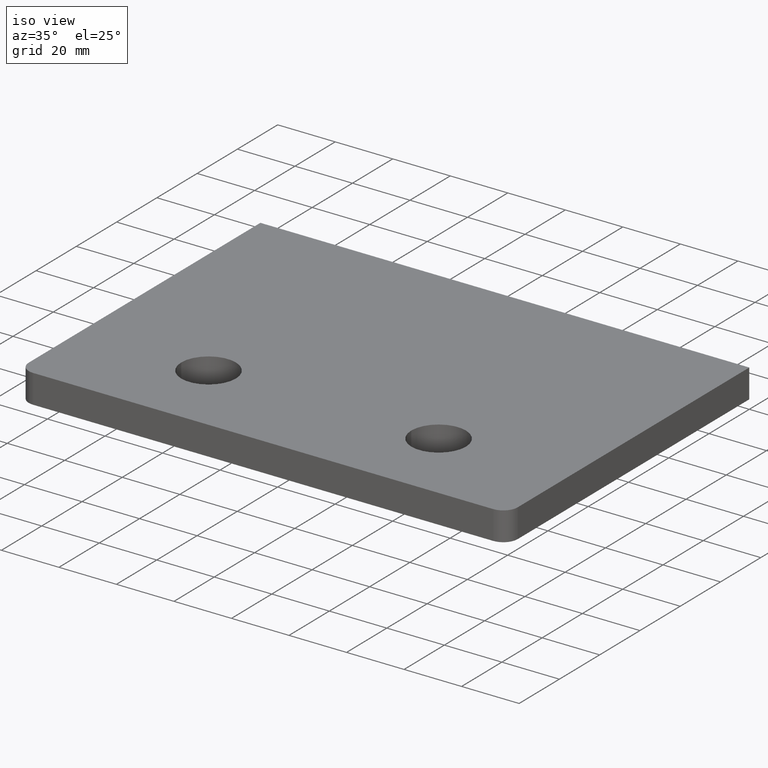
[diagram: clean part render]
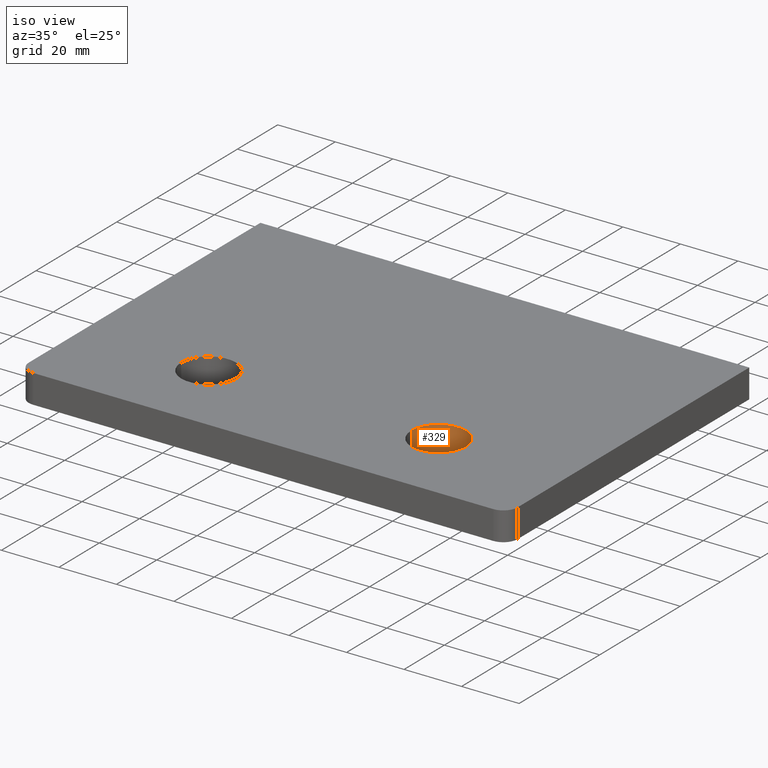
[diagram: same view with one face highlighted and labeled with its STEP entity id]
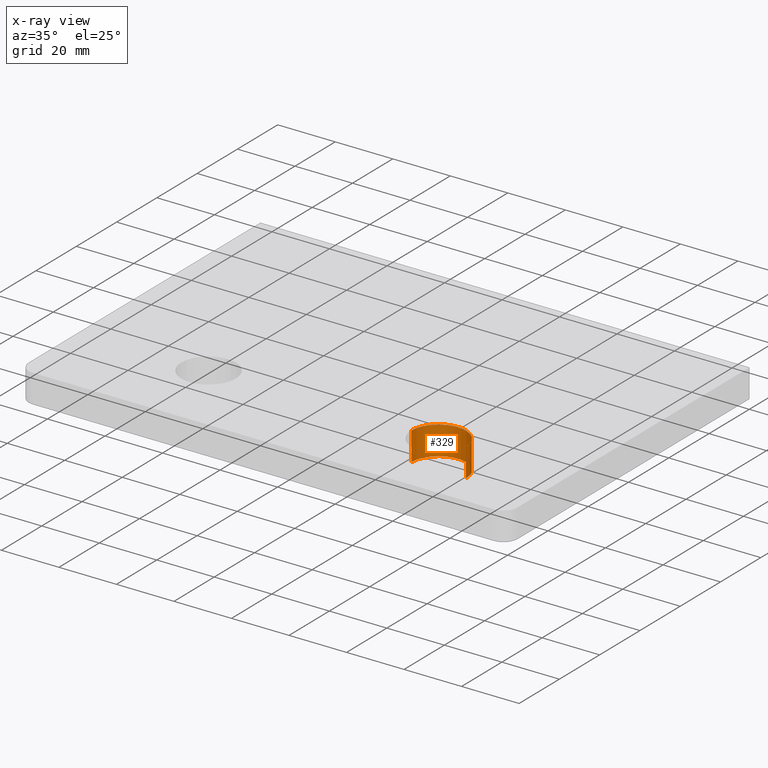
[diagram: x-ray of the same camera — body ghosted, the highlighted face saturated]
A machine part, iso view. The second image highlights one B-rep face of the part: STEP entity #329.
The next image is the same camera in x-ray: the body ghosted, the highlighted face saturated — about 0% of this face is hidden behind the body in this view.
In plain terms, the highlighted cylindrical surface (edge-blend (fillet) strip) has radius 9.5 mm, axis along (-0, -0, 1).
Its self-contained STEP definition (entity closure, byte-faithful):
#1 = VERTEX_POINT ( 'NONE', #235 ) ;
#23 = DIRECTION ( 'NONE',  ( -0.000000000000000000, -0.000000000000000000, 1.000000000000000000 ) ) ;
#46 = LINE ( 'NONE', #336, #432 ) ;
#51 = EDGE_CURVE ( 'NONE', #262, #64, #69, .T. ) ;
#52 = ORIENTED_EDGE ( 'NONE', *, *, #178, .T. ) ;
#64 = VERTEX_POINT ( 'NONE', #280 ) ;
#69 = CIRCLE ( 'NONE', #144, 9.499999999999994671 ) ;
#72 = CARTESIAN_POINT ( 'NONE',  ( -35.50000000000001421, 29.99999999999999289, 0.000000000000000000 ) ) ;
#95 = VERTEX_POINT ( 'NONE', #101 ) ;
#98 = AXIS2_PLACEMENT_3D ( 'NONE', #434, #269, #412 ) ;
#101 = CARTESIAN_POINT ( 'NONE',  ( -54.50000000000000711, 29.99999999999999289, 3.061616997868380183E-16 ) ) ;
#107 = EDGE_LOOP ( 'NONE', ( #195, #153, #52, #415 ) ) ;
#141 = DIRECTION ( 'NONE',  ( -0.000000000000000000, -0.000000000000000000, 1.000000000000000000 ) ) ;
#144 = AXIS2_PLACEMENT_3D ( 'NONE', #288, #394, #245 ) ;
#153 = ORIENTED_EDGE ( 'NONE', *, *, #51, .F. ) ;
#159 = CYLINDRICAL_SURFACE ( 'NONE', #98, 9.499999999999994671 ) ;
#164 = CARTESIAN_POINT ( 'NONE',  ( -45.00000000000001421, 29.99999999999999289, 3.061616997868380183E-16 ) ) ;
#178 = EDGE_CURVE ( 'NONE', #262, #1, #392, .T. ) ;
#195 = ORIENTED_EDGE ( 'NONE', *, *, #314, .F. ) ;
#202 = DIRECTION ( 'NONE',  ( 1.000000000000000000, 0.000000000000000000, 0.000000000000000000 ) ) ;
#228 = CARTESIAN_POINT ( 'NONE',  ( -35.50000000000001421, 29.99999999999999289, -10.00000000000000000 ) ) ;
#235 = CARTESIAN_POINT ( 'NONE',  ( -35.50000000000001421, 29.99999999999999289, 3.061616997868380183E-16 ) ) ;
#245 = DIRECTION ( 'NONE',  ( 1.000000000000000000, 0.000000000000000000, 0.000000000000000000 ) ) ;
#252 = VECTOR ( 'NONE', #141, 1000.000000000000000 ) ;
#253 = AXIS2_PLACEMENT_3D ( 'NONE', #164, #384, #202 ) ;
#262 = VERTEX_POINT ( 'NONE', #228 ) ;
#269 = DIRECTION ( 'NONE',  ( -0.000000000000000000, -0.000000000000000000, 1.000000000000000000 ) ) ;
#280 = CARTESIAN_POINT ( 'NONE',  ( -54.50000000000000711, 29.99999999999999289, -10.00000000000000000 ) ) ;
#288 = CARTESIAN_POINT ( 'NONE',  ( -45.00000000000001421, 29.99999999999999289, -10.00000000000000000 ) ) ;
#294 = FACE_OUTER_BOUND ( 'NONE', #107, .T. ) ;
#314 = EDGE_CURVE ( 'NONE', #64, #95, #46, .T. ) ;
#329 = ADVANCED_FACE ( 'NONE', ( #294 ), #159, .F. ) ;
#336 = CARTESIAN_POINT ( 'NONE',  ( -54.50000000000000711, 29.99999999999999289, 0.000000000000000000 ) ) ;
#384 = DIRECTION ( 'NONE',  ( -0.000000000000000000, -0.000000000000000000, 1.000000000000000000 ) ) ;
#391 = CIRCLE ( 'NONE', #253, 9.499999999999994671 ) ;
#392 = LINE ( 'NONE', #72, #252 ) ;
#394 = DIRECTION ( 'NONE',  ( 0.000000000000000000, -0.000000000000000000, 1.000000000000000000 ) ) ;
#396 = EDGE_CURVE ( 'NONE', #1, #95, #391, .T. ) ;
#412 = DIRECTION ( 'NONE',  ( 1.000000000000000000, 0.000000000000000000, 0.000000000000000000 ) ) ;
#415 = ORIENTED_EDGE ( 'NONE', *, *, #396, .T. ) ;
#432 = VECTOR ( 'NONE', #23, 1000.000000000000000 ) ;
#434 = CARTESIAN_POINT ( 'NONE',  ( -45.00000000000001421, 29.99999999999999289, 0.000000000000000000 ) ) ;